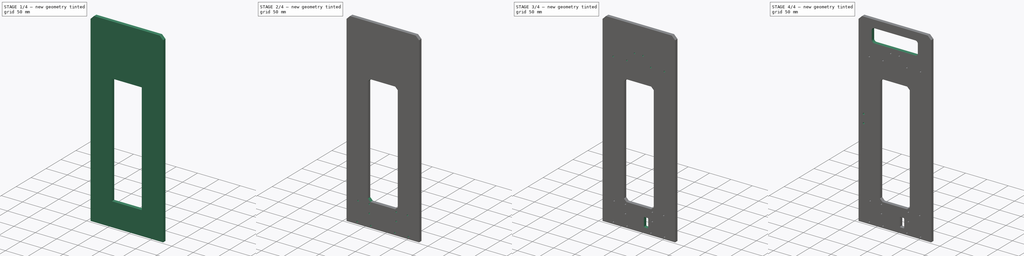
[diagram: build sequence overview — one tinted view per stage of 4, left to right]
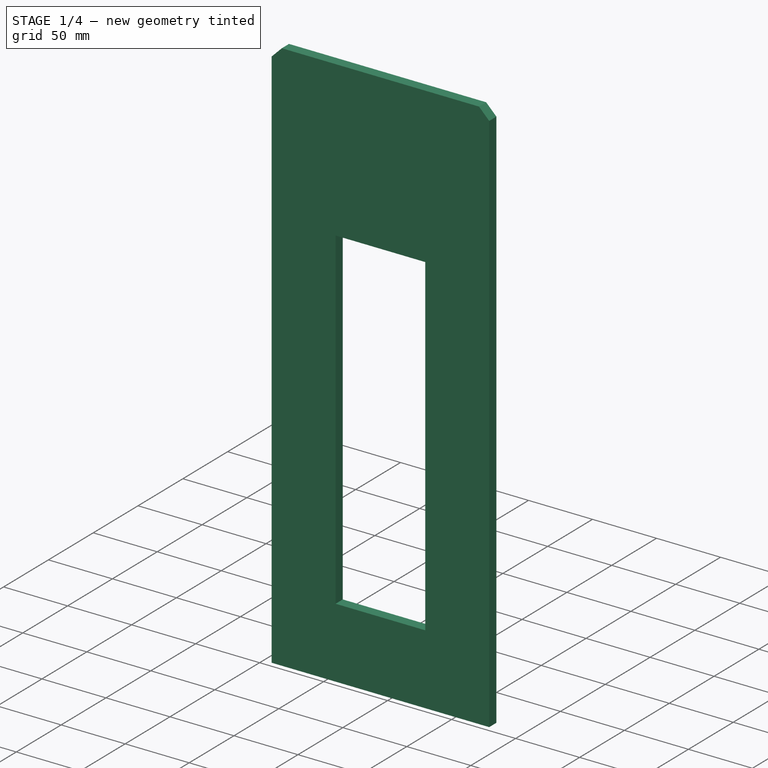
[diagram: stage 1 of 4 — iso view after this stage's code; geometry added in this stage tinted green]
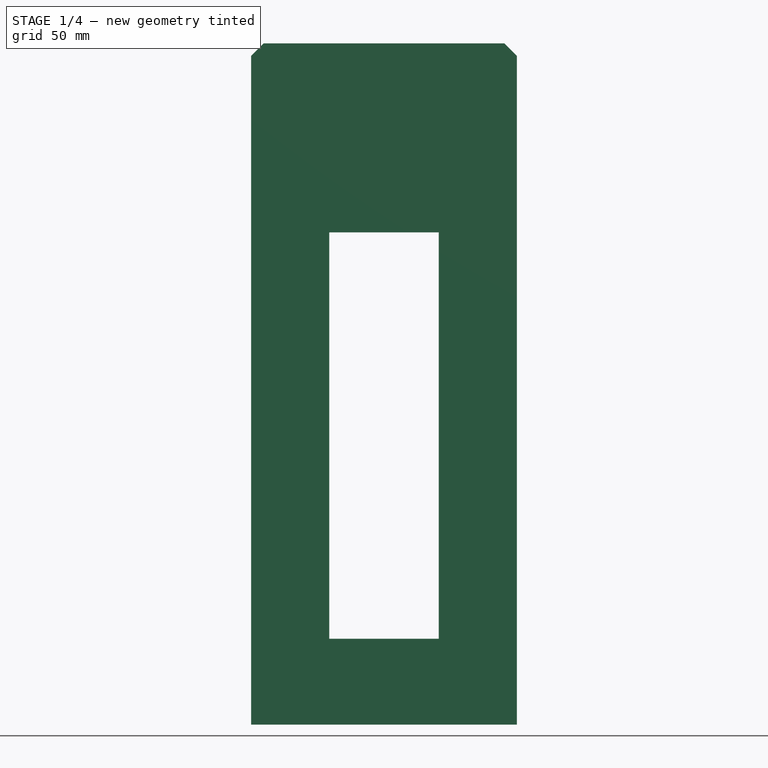
[diagram: stage 1 of 4 — front view after this stage's code; geometry added in this stage tinted green]
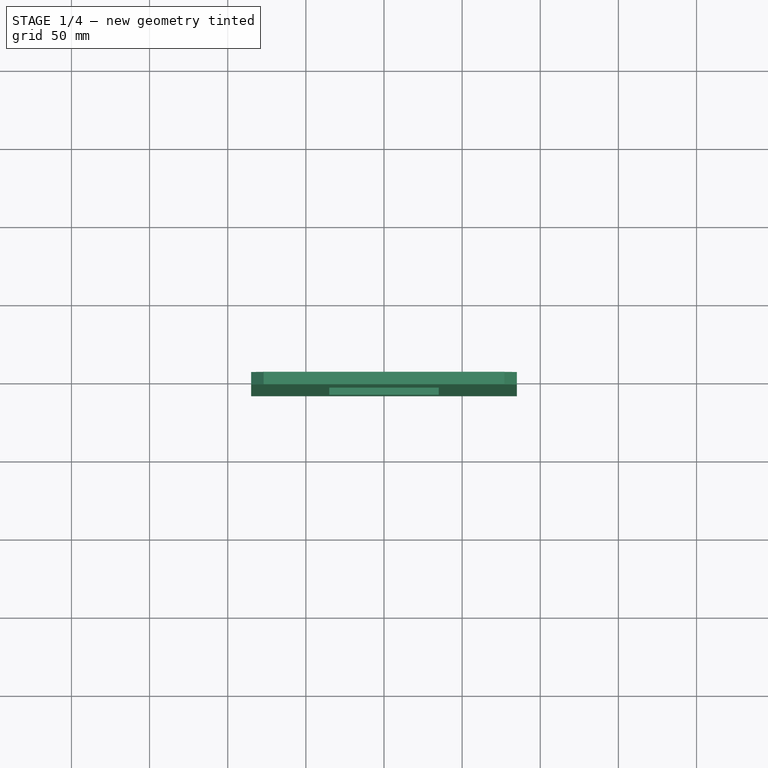
[diagram: stage 1 of 4 — top view after this stage's code; geometry added in this stage tinted green]
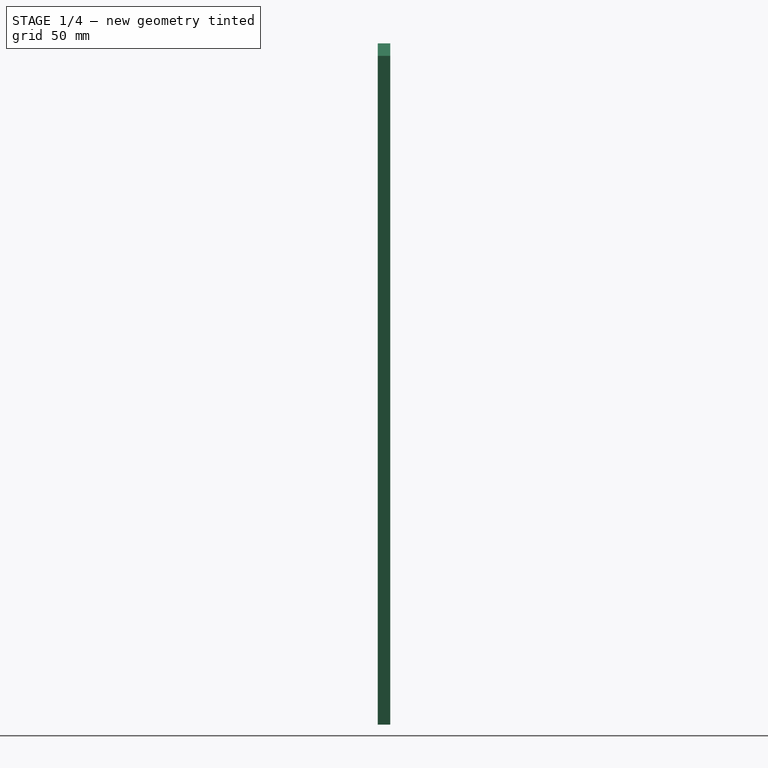
[diagram: stage 1 of 4 — right view after this stage's code; geometry added in this stage tinted green]
FCSTD DOCUMENT  (FreeCAD 0.15R4671 (Git))
Label: frame_i4
License: CC-BY 3.0
LicenseURL: http://creativecommons.org/licenses/by/3.0/
objects: Sketcher::SketchObject×8, PartDesign::Pocket×7, PartDesign::Chamfer×2, PartDesign::Pad×1, Part::Feature×1
note: 27 computed .brp shape members not serialized (recipe doc carries the construction recipe); baked Part::Feature solids carry a one-line shape summary decoded from their .brp

FEATURE [Sketcher::SketchObject] Sketch
  Placement = pos=(0,0,0) rot=(1,0,0;1.5708rad)
  sketch-geometry (8):
    g0: LineSegment StartX=85 StartY=436 StartZ=0 EndX=85 EndY=0 EndZ=0
    g1: LineSegment StartX=85 StartY=0 StartZ=0 EndX=-85 EndY=0 EndZ=0
    g2: LineSegment StartX=-85 StartY=0 StartZ=0 EndX=-85 EndY=436 EndZ=0
    g3: LineSegment StartX=-35 StartY=315 StartZ=0 EndX=35 EndY=315 EndZ=0
    g4: LineSegment StartX=35 StartY=315 StartZ=0 EndX=35 EndY=55 EndZ=0
    g5: LineSegment StartX=35 StartY=55 StartZ=0 EndX=-35 EndY=55 EndZ=0
    g6: LineSegment StartX=-35 StartY=55 StartZ=0 EndX=-35 EndY=315 EndZ=0
    g7: LineSegment StartX=-85 StartY=436 StartZ=0 EndX=85 EndY=436 EndZ=0
  constraints (23):
    c: Coincident(g0,g1)
    c: Coincident(g1,g2)
    c: Vertical(g0)
    c: Vertical(g2)
    c: PointOnObject(g0,g-1)
    c: Coincident(g3,g4)
    c: Coincident(g4,g5)
    c: Coincident(g5,g6)
    c: Coincident(g6,g3)
    c: Horizontal(g3)
    c: Horizontal(g5)
    c: Vertical(g4)
    c: Vertical(g6)
    c: DistanceX(g5,g4) = 70
    c: Symmetric(g5,g4,g-2)
    c: Symmetric(g1,g0,g-2)
    c: DistanceY(g4,g0) = -55
    c: DistanceX(g4,g0) = 50
    c: DistanceY(g3,g4) = -260
    c: DistanceY(g3,g0) = 121
    c: Equal(g2,g0)
    c: Coincident(g7,g2)
    c: Coincident(g7,g0)
FEATURE [PartDesign::Pad] Pad  label="main_section"
  Length = 8
  Length2 = 100
  Placement = pos=(0,0,0) rot=(1,0,0;1.5708rad)
  Sketch = -> Sketch
  Type = 0
FEATURE [PartDesign::Chamfer] Chamfer  label="frame_upper_chamfer"
  Base = -> Pad [Edge8,Edge1]
  Placement = pos=(0,0,0) rot=(1,0,0;1.5708rad)
  Size = 8
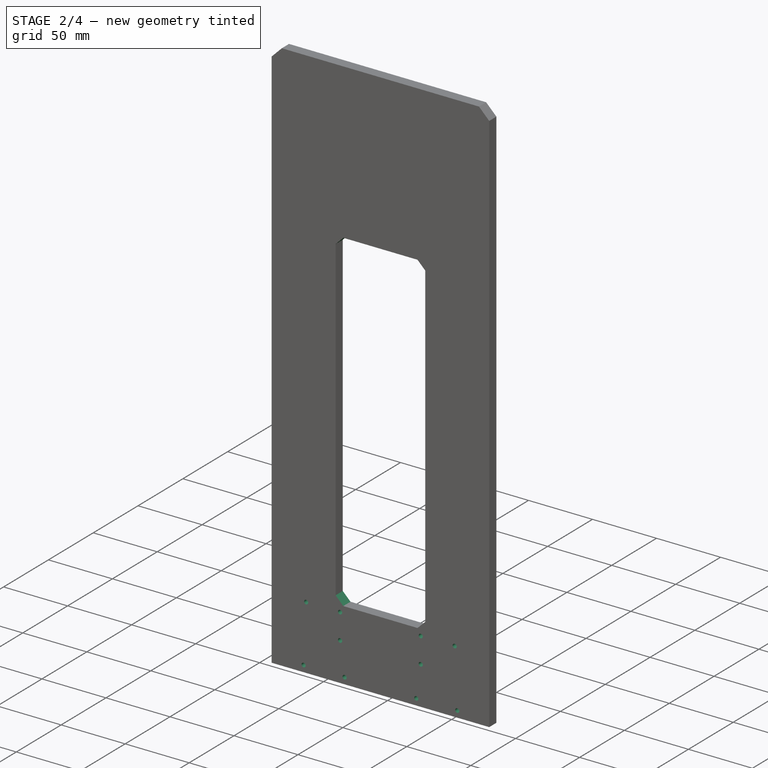
[diagram: stage 2 of 4 — iso view after this stage's code; geometry added in this stage tinted green]
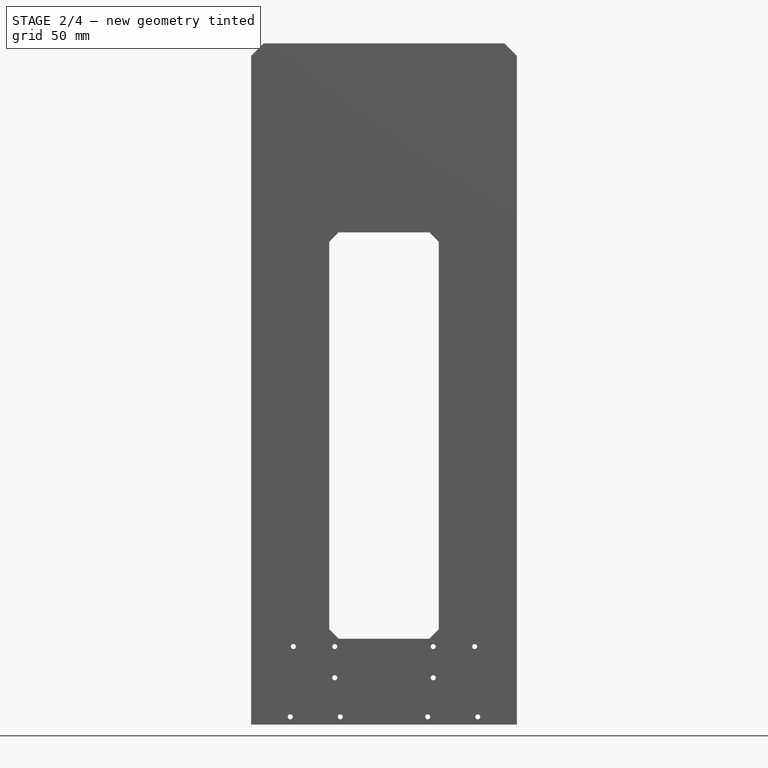
[diagram: stage 2 of 4 — front view after this stage's code; geometry added in this stage tinted green]
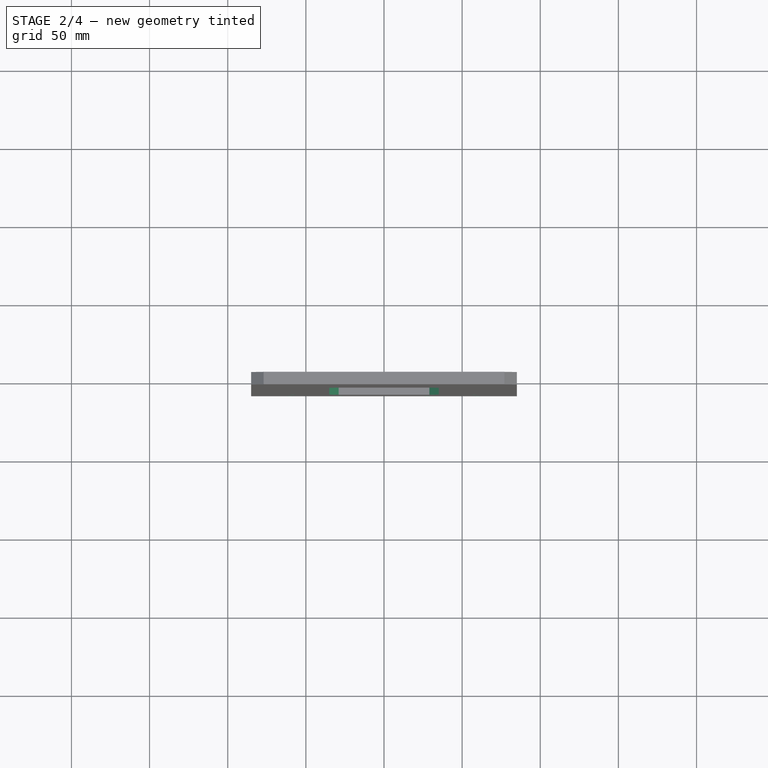
[diagram: stage 2 of 4 — top view after this stage's code; geometry added in this stage tinted green]
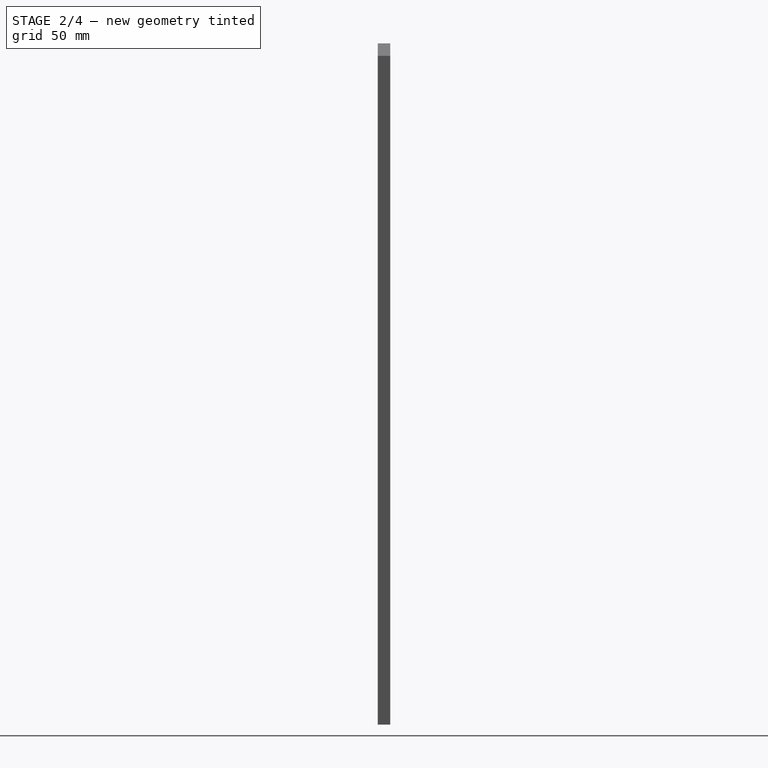
[diagram: stage 2 of 4 — right view after this stage's code; geometry added in this stage tinted green]
FEATURE [PartDesign::Chamfer] Chamfer001  label="inner_chamfers"
  Base = -> Chamfer [Edge27,Edge28,Edge29,Edge30]
  Placement = pos=(0,0,0) rot=(1,0,0;1.5708rad)
  Size = 6
FEATURE [Sketcher::SketchObject] Sketch001
  Placement = pos=(0,-8,0) rot=(1,0,0;1.5708rad)
  Support = -> Chamfer001 [Face16]
  sketch-geometry (9):
    g0: Circle CenterX=-58 CenterY=50 CenterZ=0 NormalX=0 NormalY=0 NormalZ=1 Radius=1.6
    g1: Circle CenterX=-31.5 CenterY=50 CenterZ=0 NormalX=0 NormalY=0 NormalZ=1 Radius=1.6
    g2: Circle CenterX=31.5 CenterY=50 CenterZ=0 NormalX=0 NormalY=0 NormalZ=1 Radius=1.6
    g3: Circle CenterX=58 CenterY=50 CenterZ=0 NormalX=0 NormalY=0 NormalZ=1 Radius=1.6
    g4: Circle CenterX=-31.5 CenterY=30 CenterZ=0 NormalX=0 NormalY=0 NormalZ=1 Radius=1.6
    g5: Circle CenterX=31.5 CenterY=30 CenterZ=0 NormalX=0 NormalY=0 NormalZ=1 Radius=1.6
    g6: GeomPoint [constr] X=0 Y=55 Z=0
    g7: GeomPoint [constr] X=0 Y=50 Z=0
    g8: GeomPoint [constr] X=0 Y=30 Z=0
  constraints (20):
    c: PointOnObject(g6,g-2)
    c: DistanceY(g-1,g6) = 55
    c: DistanceY(g6,g7) = -5
    c: Equal(g0,g1)
    c: Equal(g1,g4)
    c: Equal(g4,g2)
    c: Equal(g2,g5)
    c: Equal(g5,g3)
    c: Radius(g3) = 1.6
    c: Symmetric(g1,g2,g7)
    c: Symmetric(g1,g2,g-2)
    c: Symmetric(g0,g3,g7)
    c: Symmetric(g3,g0,g-2)
    c: PointOnObject(g8,g-2)
    c: Symmetric(g4,g5,g8)
    c: Symmetric(g4,g5,g-2)
    c: DistanceX(g1,g2) = 63
    c: DistanceX(g0,g3) = 116
    c: DistanceX(g1,g4) = 0
    c: DistanceY(g1,g4) = -20
FEATURE [PartDesign::Pocket] Pocket  label="back_structure_holes"
  Length = 100
  Placement = pos=(0,0,0) rot=(1,0,0;1.5708rad)
  Sketch = -> Sketch001
  Type = 0
FEATURE [Sketcher::SketchObject] Sketch002
  Placement = pos=(0,-8,0) rot=(1,0,0;1.5708rad)
  Support = -> Pocket [Face22]
  sketch-geometry (6):
    g0: Circle CenterX=-60 CenterY=5 CenterZ=0 NormalX=0 NormalY=0 NormalZ=1 Radius=1.6
    g1: Circle CenterX=-28 CenterY=5 CenterZ=0 NormalX=0 NormalY=0 NormalZ=1 Radius=1.6
    g2: Circle CenterX=28 CenterY=5 CenterZ=0 NormalX=0 NormalY=0 NormalZ=1 Radius=1.6
    g3: Circle CenterX=60 CenterY=5 CenterZ=0 NormalX=0 NormalY=0 NormalZ=1 Radius=1.6
    g4: GeomPoint [constr] X=44 Y=5 Z=0
    g5: GeomPoint [constr] X=-44 Y=5 Z=0
  constraints (13):
    c: Equal(g0,g1)
    c: Equal(g1,g2)
    c: Equal(g2,g3)
    c: Radius(g3) = 1.6
    c: Symmetric(g2,g3,g4)
    c: DistanceY(g2,g3) = 0
    c: Symmetric(g0,g1,g5)
    c: DistanceX(g5,g4) = 88
    c: Symmetric(g1,g2,g-2)
    c: DistanceX(g2,g3) = 32
    c: DistanceY(g1,g0) = 0
    c: DistanceY(g-1,g1) = 5
    c: Symmetric(g0,g3,g-2)
FEATURE [PartDesign::Pocket] Pocket001  label="lower_smooth_rod_holder_holes"
  Length = 100
  Placement = pos=(0,0,0) rot=(1,0,0;1.5708rad)
  Sketch = -> Sketch002
  Type = 0
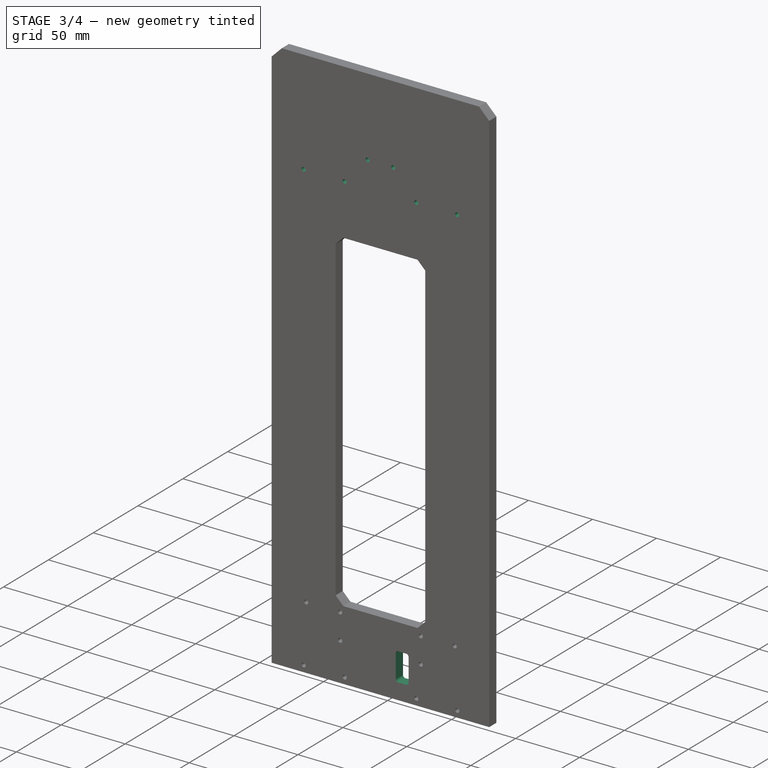
[diagram: stage 3 of 4 — iso view after this stage's code; geometry added in this stage tinted green]
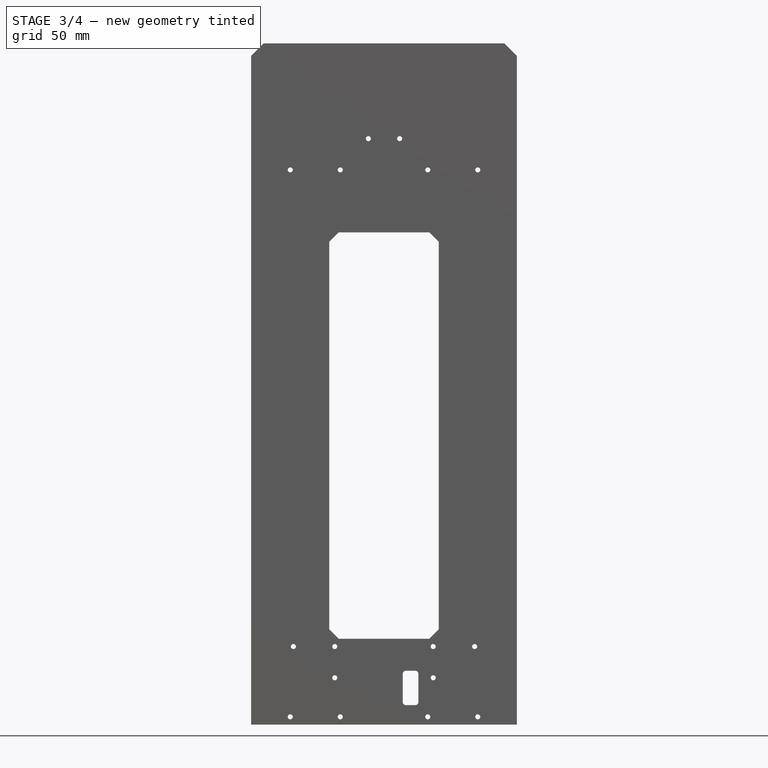
[diagram: stage 3 of 4 — front view after this stage's code; geometry added in this stage tinted green]
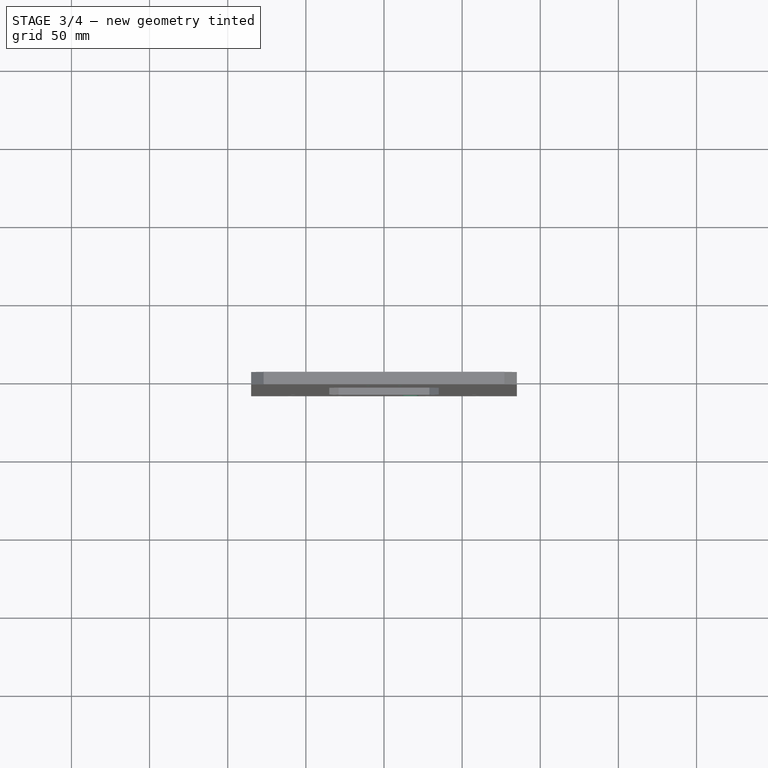
[diagram: stage 3 of 4 — top view after this stage's code; geometry added in this stage tinted green]
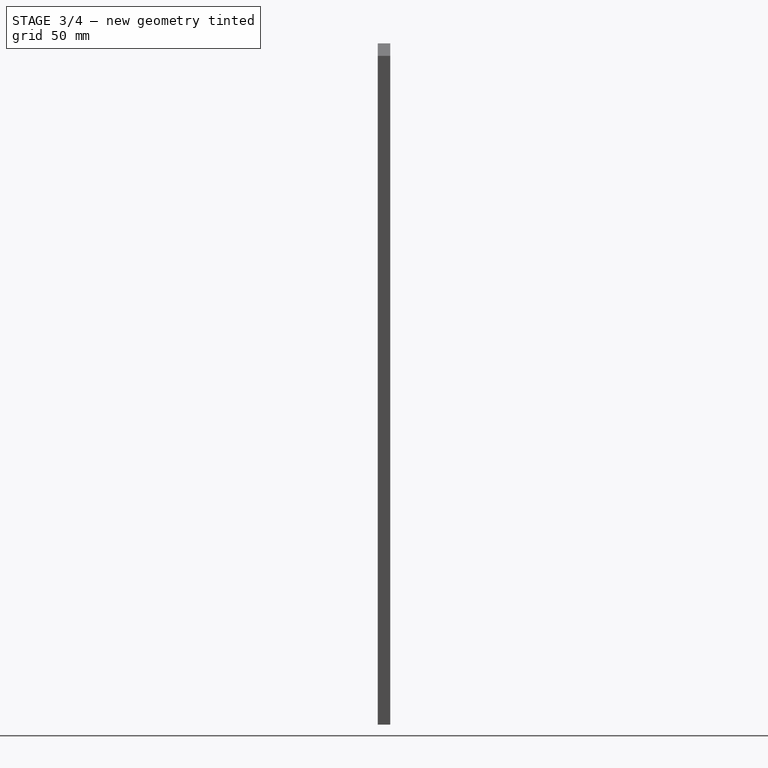
[diagram: stage 3 of 4 — right view after this stage's code; geometry added in this stage tinted green]
FEATURE [Sketcher::SketchObject] Sketch003
  Placement = pos=(0,-8,0) rot=(1,0,0;1.5708rad)
  Support = -> Pocket001 [Face26]
  sketch-geometry (6):
    g0: Circle CenterX=-60 CenterY=355 CenterZ=0 NormalX=0 NormalY=0 NormalZ=1 Radius=1.6
    g1: Circle CenterX=-28 CenterY=355 CenterZ=0 NormalX=0 NormalY=0 NormalZ=1 Radius=1.6
    g2: Circle CenterX=28 CenterY=355 CenterZ=0 NormalX=0 NormalY=0 NormalZ=1 Radius=1.6
    g3: Circle CenterX=60 CenterY=355 CenterZ=0 NormalX=0 NormalY=0 NormalZ=1 Radius=1.6
    g4: GeomPoint [constr] X=44 Y=355 Z=0
    g5: GeomPoint [constr] X=-44 Y=355 Z=0
  constraints (12):
    c: Equal(g3,g2)
    c: Equal(g2,g1)
    c: Equal(g1,g0)
    c: Radius(g3) = 1.6
    c: Symmetric(g2,g3,g4)
    c: DistanceX(g2,g3) = 32
    c: DistanceY(g2,g3) = 0
    c: Symmetric(g0,g1,g5)
    c: Symmetric(g1,g2,g-2)
    c: Symmetric(g0,g3,g-2)
    c: DistanceX(g5,g4) = 88
    c: DistanceY(g-1,g3) = 355
FEATURE [PartDesign::Pocket] Pocket002  label="upper_smooth_rod_holder_holes"
  Length = 100
  Placement = pos=(0,0,0) rot=(1,0,0;1.5708rad)
  Sketch = -> Sketch003
  Type = 0
FEATURE [Sketcher::SketchObject] Sketch004
  Placement = pos=(0,-8,0) rot=(1,0,0;1.5708rad)
  Support = -> Pocket002 [Face30]
  sketch-geometry (2):
    g0: Circle CenterX=-10 CenterY=375 CenterZ=0 NormalX=0 NormalY=0 NormalZ=1 Radius=1.6
    g1: Circle CenterX=10 CenterY=375 CenterZ=0 NormalX=0 NormalY=0 NormalZ=1 Radius=1.6
  constraints (5):
    c: Symmetric(g1,g0,g-2)
    c: Equal(g0,g1)
    c: Radius(g1) = 1.6
    c: DistanceX(g0,g1) = 20
    c: DistanceY(g-1,g1) = 375
FEATURE [PartDesign::Pocket] Pocket003  label="extruder_holes"
  Length = 100
  Placement = pos=(0,0,0) rot=(1,0,0;1.5708rad)
  Sketch = -> Sketch004
  Type = 0
FEATURE [Sketcher::SketchObject] Sketch005
  Placement = pos=(0,-8,0) rot=(1,0,0;1.5708rad)
  Support = -> Pocket003 [Face32]
  sketch-geometry (8):
    g0: LineSegment StartX=14 StartY=34.5 StartZ=0 EndX=20 EndY=34.5 EndZ=0
    g1: LineSegment StartX=22 StartY=32.5 StartZ=0 EndX=22 EndY=14.5 EndZ=0
    g2: LineSegment StartX=20 StartY=12.5 StartZ=0 EndX=14 EndY=12.5 EndZ=0
    g3: LineSegment StartX=12 StartY=14.5 StartZ=0 EndX=12 EndY=32.5 EndZ=0
    g4: ArcOfCircle CenterX=14 CenterY=32.5 CenterZ=0 NormalX=0 NormalY=0 NormalZ=1 Radius=2 StartAngle=1.5708 EndAngle=3.14159
    g5: ArcOfCircle CenterX=20 CenterY=32.5 CenterZ=0 NormalX=0 NormalY=0 NormalZ=1 Radius=2 StartAngle=0 EndAngle=1.5708
    g6: ArcOfCircle CenterX=20 CenterY=14.5 CenterZ=0 NormalX=0 NormalY=0 NormalZ=1 Radius=2 StartAngle=4.71239 EndAngle=6.28319
    g7: ArcOfCircle CenterX=14 CenterY=14.5 CenterZ=0 NormalX=0 NormalY=0 NormalZ=1 Radius=2 StartAngle=3.14159 EndAngle=4.71239
  constraints (20):
    c: Horizontal(g0)
    c: Horizontal(g2)
    c: Vertical(g1)
    c: Vertical(g3)
    c: Tangent(g0,g4)
    c: Tangent(g3,g4)
    c: Tangent(g0,g5)
    c: Tangent(g1,g5)
    c: Tangent(g1,g6)
    c: Tangent(g2,g6)
    c: Tangent(g2,g7)
    c: Tangent(g3,g7)
    c: Equal(g4,g5)
    c: Equal(g5,g7)
    c: Equal(g7,g6)
    c: DistanceX(g3,g1) = 10
    c: DistanceY(g0,g2) = -22
    c: Radius(g5) = 2
    c: DistanceX(g-1,g3) = 12
    c: DistanceY(g-1,g2) = 12.5
FEATURE [PartDesign::Pocket] Pocket004  label="cable_hole"
  Length = 100
  Placement = pos=(0,0,0) rot=(1,0,0;1.5708rad)
  Sketch = -> Sketch005
  Type = 0
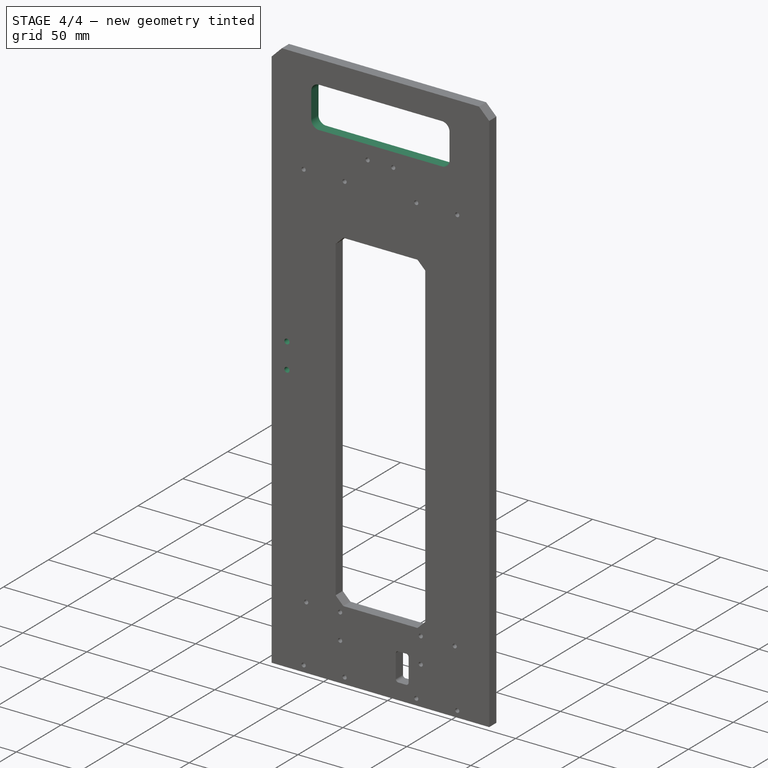
[diagram: stage 4 of 4 — iso view after this stage's code; geometry added in this stage tinted green]
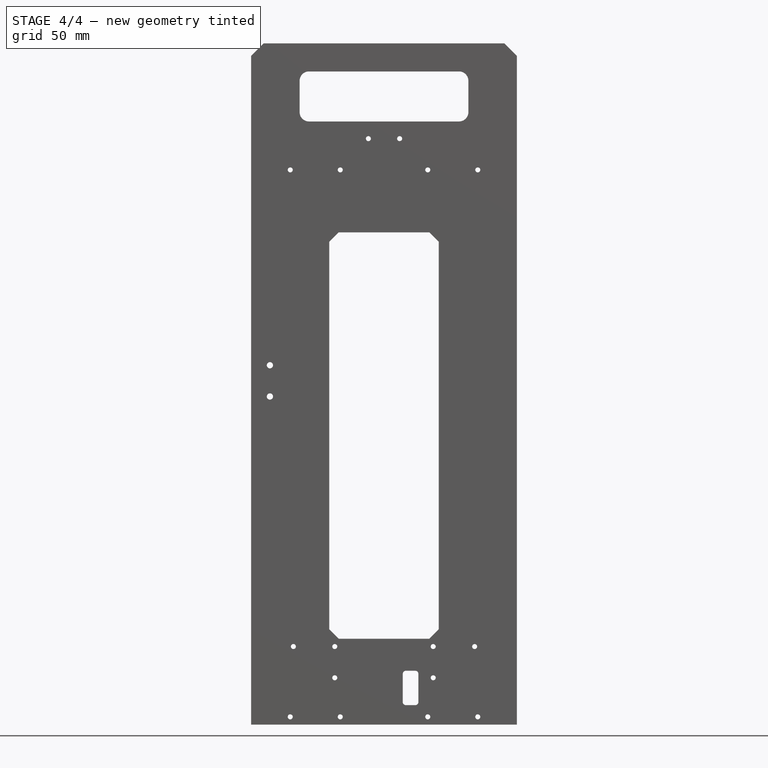
[diagram: stage 4 of 4 — front view after this stage's code; geometry added in this stage tinted green]
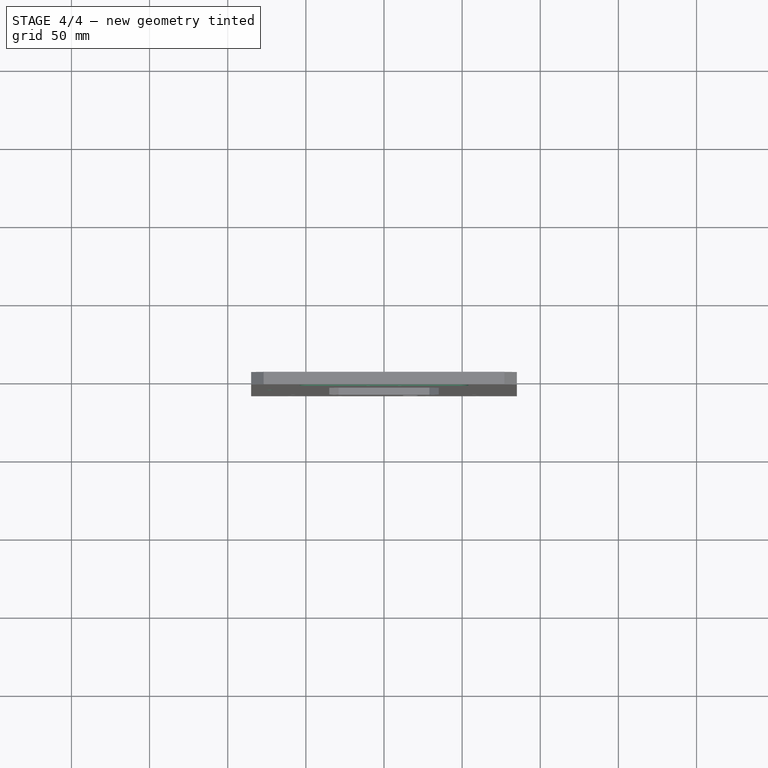
[diagram: stage 4 of 4 — top view after this stage's code; geometry added in this stage tinted green]
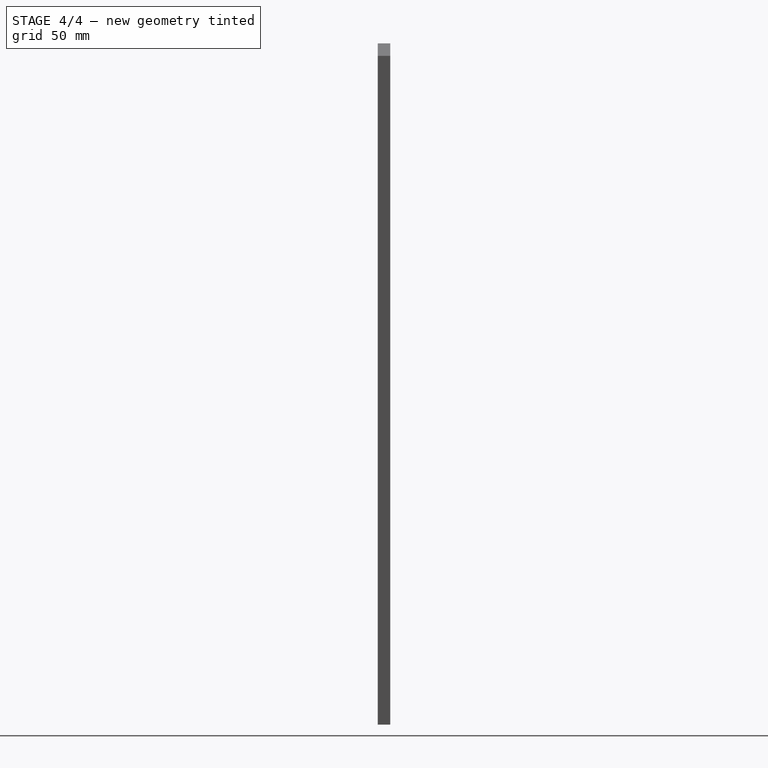
[diagram: stage 4 of 4 — right view after this stage's code; geometry added in this stage tinted green]
FEATURE [Sketcher::SketchObject] Sketch006
  ExternalGeometry = -> [Pocket004]
  Placement = pos=(0,-8,0) rot=(1,0,0;1.5708rad)
  Support = -> Pocket004 [Face40]
  sketch-geometry (3):
    g0: Circle CenterX=-73 CenterY=230 CenterZ=0 NormalX=0 NormalY=0 NormalZ=1 Radius=2
    g1: Circle CenterX=-73 CenterY=210 CenterZ=0 NormalX=0 NormalY=0 NormalZ=1 Radius=2
    g2: GeomPoint [constr] X=-73 Y=220 Z=0
  constraints (7):
    c: DistanceX(g0,g1) = 0
    c: DistanceY(g1,g0) = 20
    c: Equal(g0,g1)
    c: Radius(g1) = 2
    c: Symmetric(g0,g1,g2)
    c: DistanceY(g-1,g2) = 220
    c: DistanceX(g-3,g0) = 12
FEATURE [PartDesign::Pocket] Pocket005  label="extruder_cables_hole"
  Length = 8
  Placement = pos=(0,0,0) rot=(1,0,0;1.5708rad)
  Sketch = -> Sketch006
  Type = 0
FEATURE [Sketcher::SketchObject] Sketch007
  ExternalGeometry = -> [Pocket005]
  Placement = pos=(0,-8,0) rot=(1,0,0;1.5708rad)
  Support = -> Pocket005 [Face42]
  sketch-geometry (8):
    g0: LineSegment StartX=-48 StartY=418 StartZ=0 EndX=48 EndY=418 EndZ=0
    g1: LineSegment StartX=54 StartY=412 StartZ=0 EndX=54 EndY=392 EndZ=0
    g2: LineSegment StartX=48 StartY=386 StartZ=0 EndX=-48 EndY=386 EndZ=0
    g3: LineSegment StartX=-54 StartY=392 StartZ=0 EndX=-54 EndY=412 EndZ=0
    g4: ArcOfCircle CenterX=-48 CenterY=412 CenterZ=0 NormalX=0 NormalY=0 NormalZ=1 Radius=6 StartAngle=1.5708 EndAngle=3.14159
    g5: ArcOfCircle CenterX=48 CenterY=412 CenterZ=0 NormalX=0 NormalY=0 NormalZ=1 Radius=6 StartAngle=0 EndAngle=1.5708
    g6: ArcOfCircle CenterX=48 CenterY=392 CenterZ=0 NormalX=0 NormalY=0 NormalZ=1 Radius=6 StartAngle=4.71239 EndAngle=6.28319
    g7: ArcOfCircle CenterX=-48 CenterY=392 CenterZ=0 NormalX=0 NormalY=0 NormalZ=1 Radius=6 StartAngle=3.14159 EndAngle=4.71239
  constraints (20):
    c: Horizontal(g0)
    c: Horizontal(g2)
    c: Vertical(g1)
    c: Vertical(g3)
    c: Tangent(g0,g4) = 1.5708
    c: Tangent(g3,g4) = 1.5708
    c: Tangent(g0,g5) = 1.5708
    c: Tangent(g1,g5) = 1.5708
    c: Tangent(g1,g6) = 1.5708
    c: Tangent(g2,g6) = 1.5708
    c: Tangent(g2,g7) = 1.5708
    c: Tangent(g3,g7) = 1.5708
    c: Equal(g4,g5)
    c: Equal(g5,g6)
    c: Equal(g6,g7)
    c: Radius(g5) = 6
    c: DistanceX(g3,g1) = 108
    c: DistanceY(g0,g2) = -32
    c: Symmetric(g0,g0,g-2)
    c: DistanceY(g-3,g0) = -18
FEATURE [PartDesign::Pocket] Pocket005002  label="handle"
  Length = 30
  Placement = pos=(0,0,0) rot=(1,0,0;1.5708rad)
  Sketch = -> Sketch007
  Type = 0
FEATURE [Part::Feature] Pocket005002001  label="frame"
  shape: bbox 170 x 436 x 8 mm, 50 faces (baked)
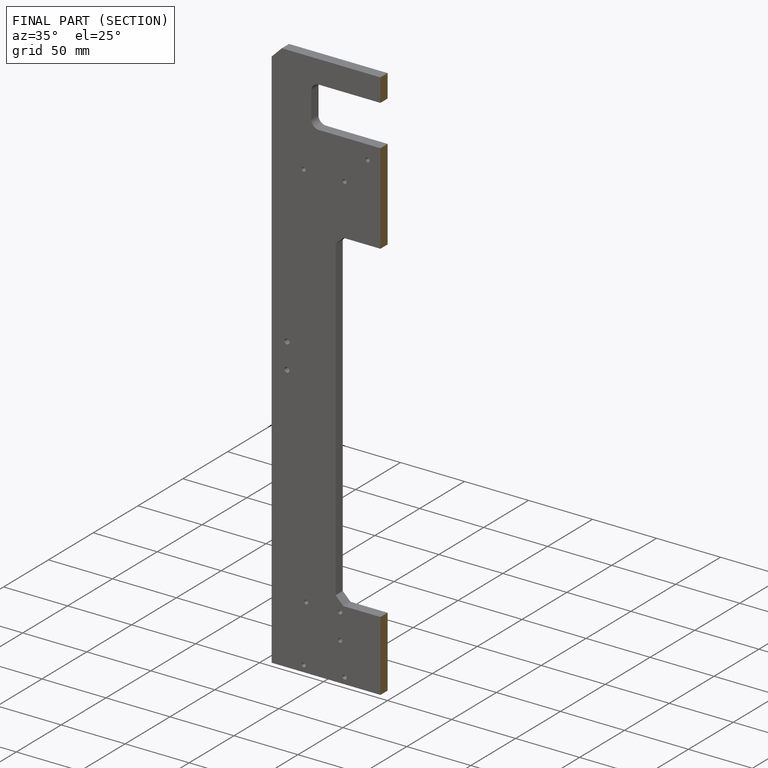
[diagram: finished part — half-section view (interior)]
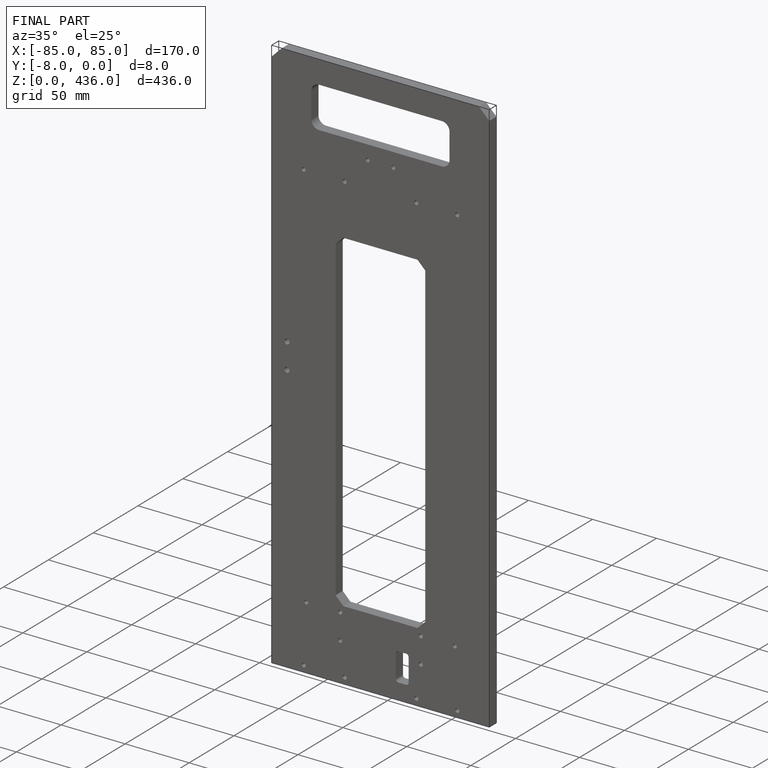
[diagram: finished part — iso view with bounding-box wireframe]
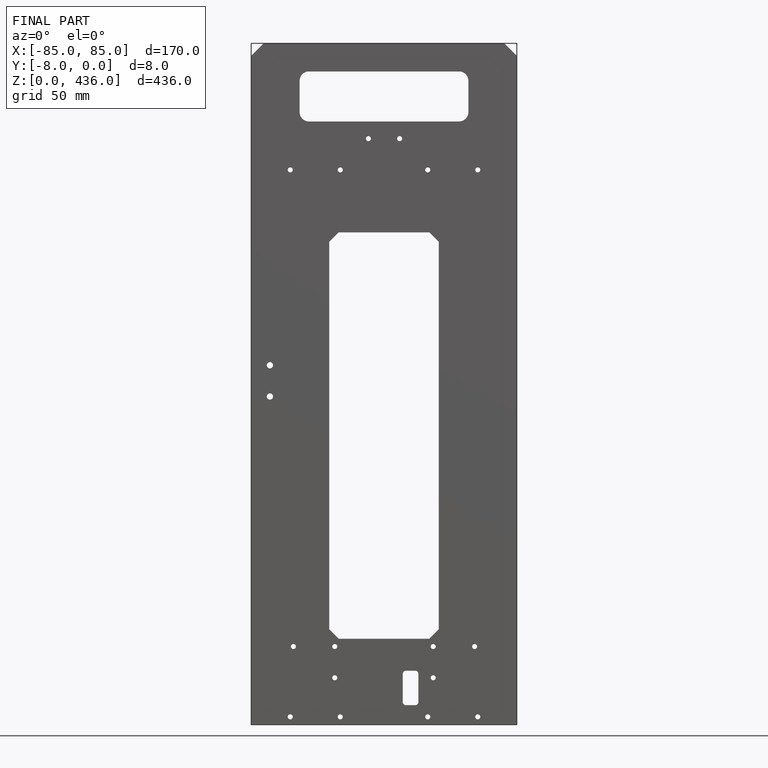
[diagram: finished part — front view with bounding-box wireframe]
